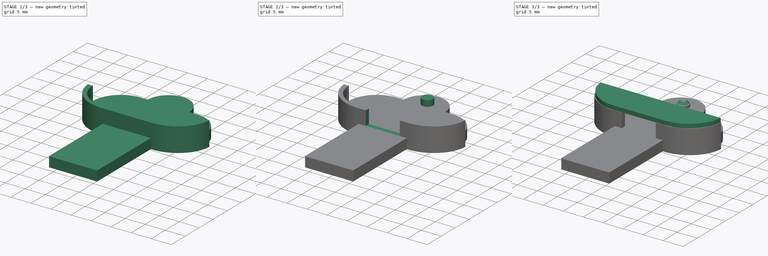
[diagram: build sequence overview — one tinted view per stage of 3, left to right]
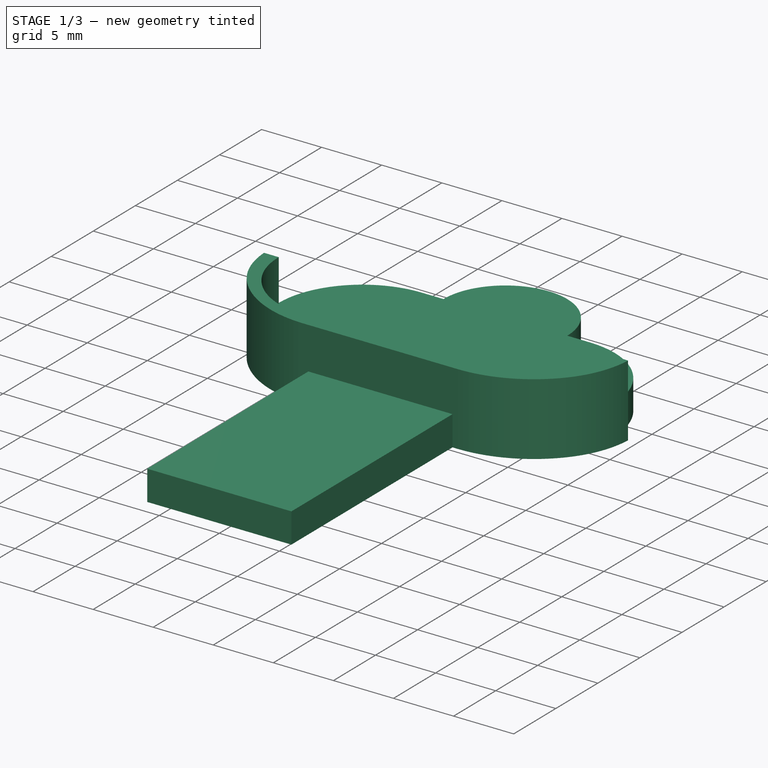
[diagram: stage 1 of 3 — iso view after this stage's code; geometry added in this stage tinted green]
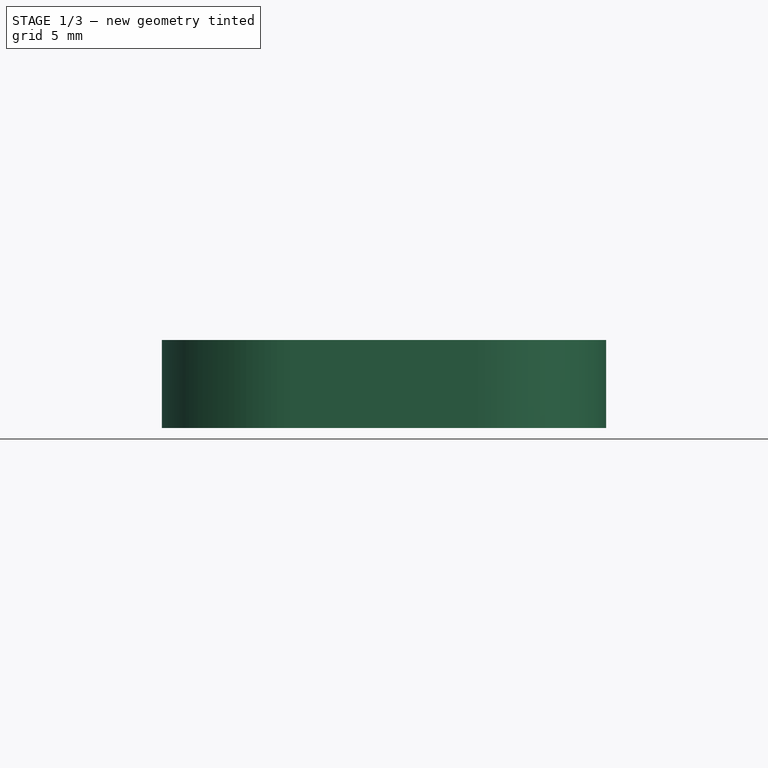
[diagram: stage 1 of 3 — front view after this stage's code; geometry added in this stage tinted green]
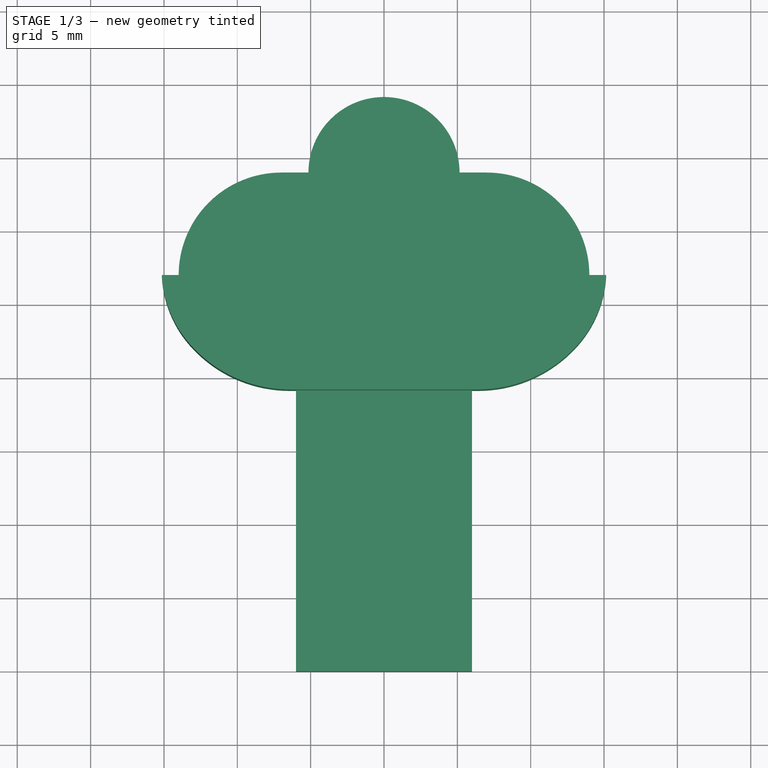
[diagram: stage 1 of 3 — top view after this stage's code; geometry added in this stage tinted green]
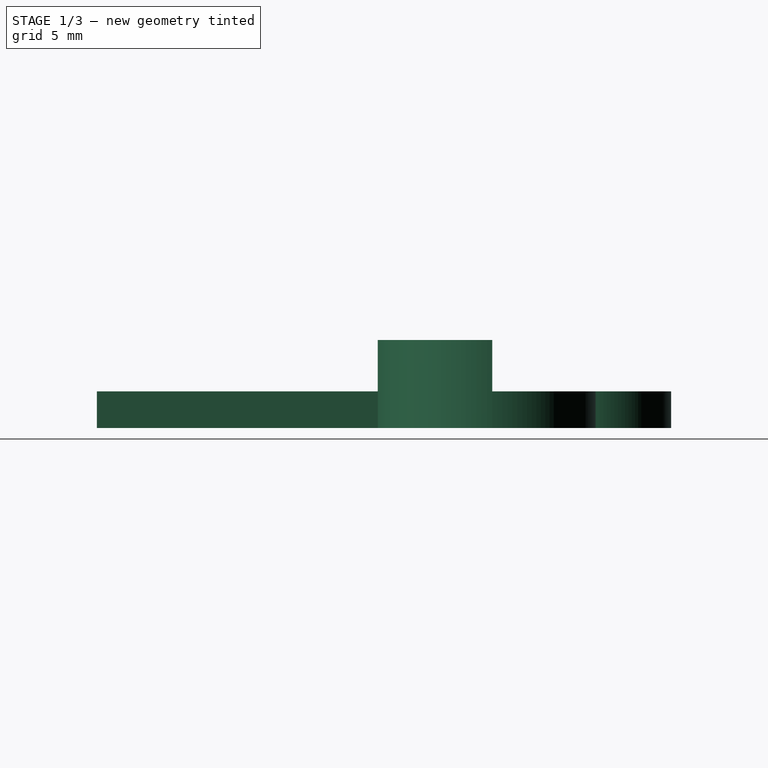
[diagram: stage 1 of 3 — right view after this stage's code; geometry added in this stage tinted green]
FCSTD DOCUMENT  (FreeCAD 0.20R29603 (Git))
Label: New_Key_Holder_ID_Badge
License: All rights reserved
LicenseURL: http://en.wikipedia.org/wiki/All_rights_reserved
objects: Sketcher::SketchObject×5, PartDesign::Pad×4, PartDesign::Body×2, App::Part×2, PartDesign::Pocket×1, PartDesign::Chamfer×1
note: 19 computed .brp shape members not serialized (recipe doc carries the construction recipe); baked Part::Feature solids carry a one-line shape summary decoded from their .brp

FEATURE [Sketcher::SketchObject] Sketch  label="Sketch_Back"
  FullyConstrained = true
  MapMode = 5
  Support = -> [XY_Plane001]
  sketch-geometry (10):
    g0: LineSegment StartX=-6 StartY=0 StartZ=0 EndX=-6 EndY=-20 EndZ=0
    g1: LineSegment StartX=-6 StartY=-20 StartZ=0 EndX=6 EndY=-20 EndZ=0
    g2: LineSegment StartX=6 StartY=-20 StartZ=0 EndX=6 EndY=0 EndZ=0
    g3: LineSegment StartX=6 StartY=0 StartZ=0 EndX=7 EndY=0 EndZ=0
    g4: LineSegment StartX=-6 StartY=0 StartZ=0 EndX=-7 EndY=0 EndZ=0
    g5: LineSegment StartX=-6.99997 StartY=14 StartZ=0 EndX=-5.15 EndY=14 EndZ=0
    g6: LineSegment StartX=7 StartY=14 StartZ=0 EndX=5.15 EndY=14 EndZ=0
    g7: ArcOfCircle CenterX=-7 CenterY=7 CenterZ=0 NormalX=0 NormalY=0 NormalZ=1 AngleXU=0 Radius=7 StartAngle=1.57079 EndAngle=4.71239
    g8: ArcOfCircle CenterX=7 CenterY=7 CenterZ=0 NormalX=0 NormalY=0 NormalZ=1 AngleXU=0 Radius=7 StartAngle=4.71239 EndAngle=7.85398
    g9: ArcOfCircle CenterX=-4e-16 CenterY=14 CenterZ=0 NormalX=0 NormalY=0 NormalZ=1 AngleXU=0 Radius=5.15 StartAngle=4e-16 EndAngle=3.14159
  constraints (28):
    c: PointOnObject(g0,g-1)
    c: Vertical(g0)
    c: Coincident(g0,g1)
    c: Coincident(g1,g2)
    c: Vertical(g2)
    c: Coincident(g2,g3)
    c: PointOnObject(g3,g-1)
    c: Coincident(g0,g4)
    c: PointOnObject(g4,g-1)
    c: Horizontal(g5)
    c: Horizontal(g6)
    c: Tangent(g4,g7) = 1.5708
    c: Coincident(g7,g5)
    c: Tangent(g3,g8) = -1.5708
    c: Coincident(g8,g6)
    c: Perpendicular(g5,g9) = 4.71239
    c: Coincident(g9,g6)
    c: DistanceX(g0,g1) = 12
    c: Horizontal(g1)
    c: Symmetric(g2,g0,g-2)
    c: DistanceX(g5,g6) = 10.3
    c: DistanceY(g2,g2) = 20
    c: DistanceY(g0,g5) = 14
    c: Symmetric(g6,g5,g-2)
    c: Equal(g8,g7)
    c: Equal(g4,g3)
    c: DistanceX(g3,g3) = 1
    c: Radius(g8) = 7
FEATURE [PartDesign::Pad] Pad001  label="Pad_Back"
  Direction = (0,0,1)
  Length = 2.5
  Length2 = 10
  Profile = -> Sketch
  ReferenceAxis = -> Sketch [N_Axis]
  Type = 0
FEATURE [PartDesign::Body] Body001  label="Body_Top"
  Group = -> [Sketch005,Pad002]
  Origin = -> Origin002
  Tip = -> Pad002
FEATURE [App::Part] Part001
  Group = -> [Body001]
  Origin = -> Origin003
FEATURE [Sketcher::SketchObject] Sketch007
  FullyConstrained = true
  MapMode = 5
  Support = -> [XY_Plane001]
  sketch-geometry (18):
    g0: LineSegment StartX=-4.26 StartY=-0.85 StartZ=0 EndX=-6.42 EndY=-0.85 EndZ=0
    g1: ArcOfCircle CenterX=-6.42 CenterY=8.215 CenterZ=0 NormalX=0 NormalY=0 NormalZ=1 AngleXU=0 Radius=9.065 StartAngle=3.85248 EndAngle=4.71239
    g2: ArcOfCircle CenterX=-7.45058 CenterY=7.32759 CenterZ=0 NormalX=0 NormalY=0 NormalZ=1 AngleXU=0 Radius=7.705 StartAngle=3.19062 EndAngle=3.85248
    g3: LineSegment StartX=4.26 StartY=-0.85 StartZ=0 EndX=6.42 EndY=-0.85 EndZ=0
    g4: ArcOfCircle CenterX=6.42 CenterY=8.215 CenterZ=0 NormalX=0 NormalY=0 NormalZ=1 AngleXU=0 Radius=9.065 StartAngle=4.71239 EndAngle=5.57229
    g5: ArcOfCircle CenterX=7.45058 CenterY=7.32759 CenterZ=0 NormalX=0 NormalY=0 NormalZ=1 AngleXU=0 Radius=7.705 StartAngle=5.57229 EndAngle=6.23416
    g6: LineSegment StartX=-15.1463 StartY=6.95 StartZ=0 EndX=-13.9263 EndY=6.95 EndZ=0
    g7: ArcOfCircle CenterX=-7.42 CenterY=6.95 CenterZ=0 NormalX=0 NormalY=0 NormalZ=1 AngleXU=0 Radius=6.50632 StartAngle=3.14159 EndAngle=3.65303
    g8: ArcOfCircle CenterX=-7.22401 CenterY=7.06 CenterZ=0 NormalX=0 NormalY=0 NormalZ=1 AngleXU=0 Radius=6.73107 StartAngle=3.65303 EndAngle=4.25676
    g9: ArcOfCircle CenterX=-6.93 CenterY=7.66 CenterZ=0 NormalX=0 NormalY=0 NormalZ=1 AngleXU=0 Radius=7.39924 StartAngle=4.25676 EndAngle=4.66242
    g10: LineSegment StartX=-7.2996 StartY=0.27 StartZ=0 EndX=-4.325 EndY=0.27 EndZ=0
    g11: LineSegment StartX=15.1463 StartY=6.95 StartZ=0 EndX=13.9263 EndY=6.95 EndZ=0
    g12: ArcOfCircle CenterX=7.42 CenterY=6.95 CenterZ=0 NormalX=0 NormalY=0 NormalZ=1 AngleXU=0 Radius=6.50632 StartAngle=5.77175 EndAngle=6.28319
    g13: ArcOfCircle CenterX=7.22401 CenterY=7.06 CenterZ=0 NormalX=0 NormalY=0 NormalZ=1 AngleXU=0 Radius=6.73107 StartAngle=5.16802 EndAngle=5.77175
    g14: ArcOfCircle CenterX=6.93 CenterY=7.66 CenterZ=0 NormalX=0 NormalY=0 NormalZ=1 AngleXU=0 Radius=7.39924 StartAngle=4.76236 EndAngle=5.16802
    g15: LineSegment StartX=7.2996 StartY=0.27 StartZ=0 EndX=4.325 EndY=0.27 EndZ=0
    g16: LineSegment StartX=-4.325 StartY=0.27 StartZ=0 EndX=4.325 EndY=0.27 EndZ=0
    g17: LineSegment StartX=-4.26 StartY=-0.85 StartZ=0 EndX=4.26 EndY=-0.85 EndZ=0
  constraints (54):
    c: Horizontal(g0)
    c: Tangent(g0,g1) = 1.5708
    c: Tangent(g1,g2) = -1.5708
    c: Horizontal(g3)
    c: Equal(g0,g3)
    c: Horizontal(g0,g3)
    c: Tangent(g3,g4) = -1.5708
    c: Equal(g1,g4)
    c: Horizontal(g1,g4)
    c: DistanceX(g0,g-1) = 4.26
    c: DistanceX(g-1,g3) = 4.26
    c: Diameter(g1) = 18.13
    c: Tangent(g4,g5) = -1.5708
    c: Horizontal(g2,g5)
    c: Equal(g2,g5)
    c: Diameter(g2) = 15.41
    c: Coincident(g2,g6)
    c: Perpendicular(g6,g7) = 4.71239
    c: Tangent(g7,g8) = -1.5708
    c: Tangent(g8,g9) = -1.5708
    c: Coincident(g9,g10)
    c: Horizontal(g10)
    c: Horizontal(g6)
    c: Coincident(g5,g11)
    c: Perpendicular(g11,g12) = 4.71239
    c: Tangent(g12,g13) = -1.5708
    c: Tangent(g13,g14) = -1.5708
    c: Coincident(g14,g15)
    c: Horizontal(g15)
    c: Horizontal(g10,g15)
    c: Coincident(g10,g16)
    c: Coincident(g16,g15)
    c: Coincident(g0,g17)
    c: Coincident(g17,g3)
    c: Equal(g7,g12)
    c: Equal(g8,g13)
    c: Equal(g9,g14)
    c: Equal(g10,g15)
    c: Equal(g6,g11)
    c: DistanceY(g-1,g10) = 0.27
    c: Horizontal(g6,g11)
    c: Horizontal(g7,g12)
    c: Horizontal(g8,g13)
    c: DistanceX(g11,g5) = 1.22
    c: DistanceY(g1,g2) = 4.65
    c: DistanceY(g0,g1) = 3.15
    c: DistanceY(g8,g7) = 2.75
    c: DistanceX(g1,g-1) = 6.42
    c: DistanceY(g3,g15) = 1.12
    c: DistanceX(g9,g-1) = 6.93
    c: DistanceY(g-1,g13) = 7.06
    c: DistanceY(g-1,g14) = 7.66
    c: DistanceX(g7,g12) = 14.84
    c: DistanceX(g10,g15) = 8.65
FEATURE [PartDesign::Pad] Pad
  BaseFeature = -> Pad001
  Direction = (0,0,1)
  Length = 6
  Length2 = 10
  Profile = -> Sketch007
  ReferenceAxis = -> Sketch007 [N_Axis]
  Type = 0
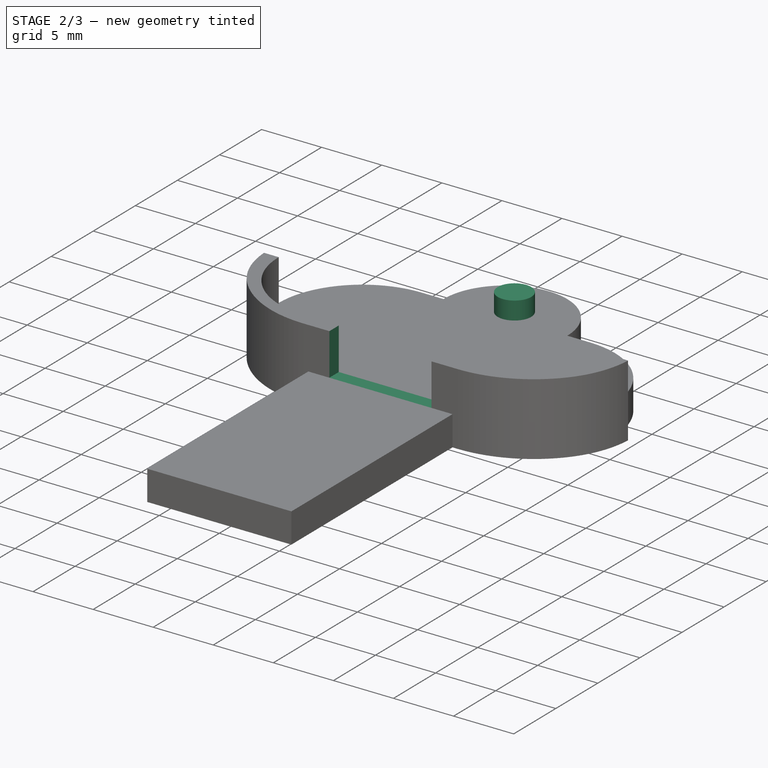
[diagram: stage 2 of 3 — iso view after this stage's code; geometry added in this stage tinted green]
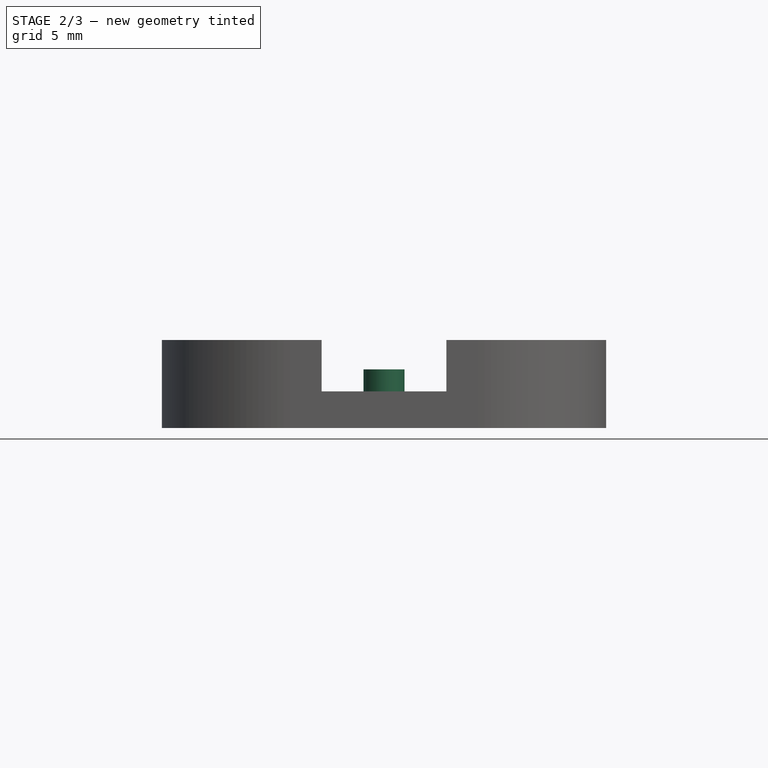
[diagram: stage 2 of 3 — front view after this stage's code; geometry added in this stage tinted green]
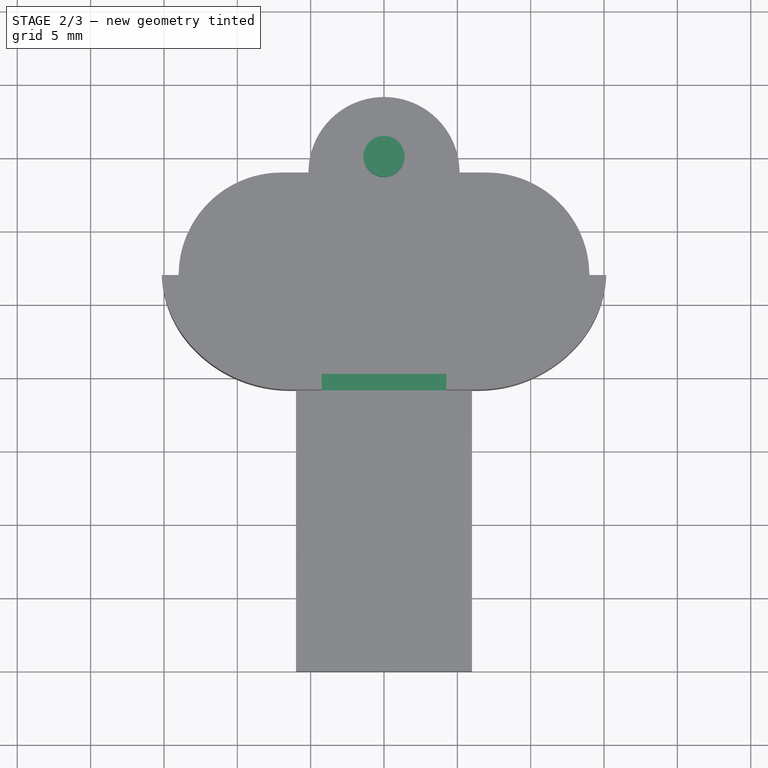
[diagram: stage 2 of 3 — top view after this stage's code; geometry added in this stage tinted green]
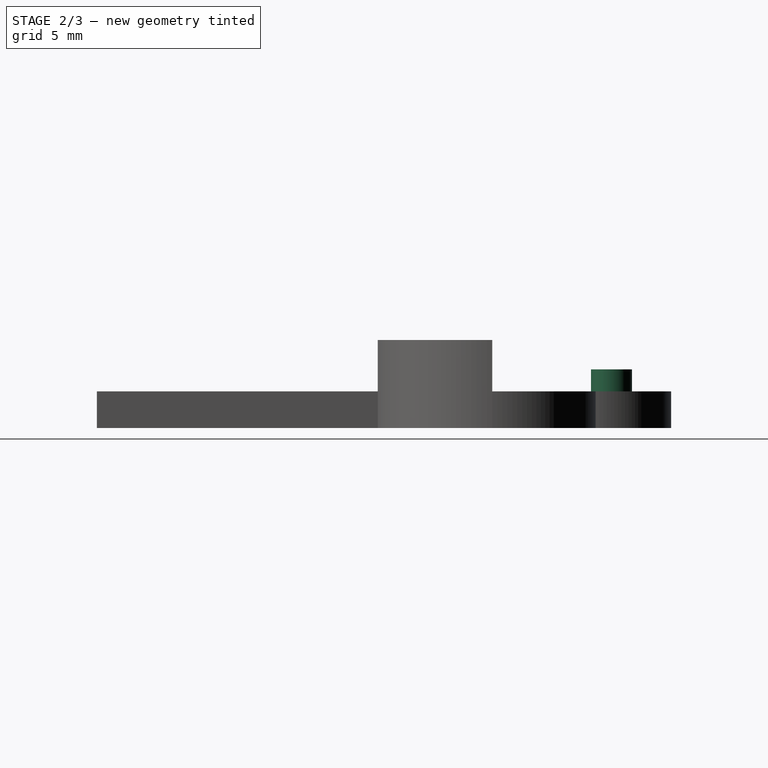
[diagram: stage 2 of 3 — right view after this stage's code; geometry added in this stage tinted green]
FEATURE [Sketcher::SketchObject] Sketch008
  AttachmentOffset = pos=(0,0,-1.75) rot=(0,0,1;0rad)
  FullyConstrained = true
  MapMode = 5
  Placement = pos=(4.25,0,0) rot=(0.57735,0.57735,0.57735;2.0944rad)
  Support = -> [Pad]
  sketch-geometry (4):
    g0: LineSegment StartX=-6.01 StartY=2.5 StartZ=0 EndX=6.01 EndY=2.5 EndZ=0
    g1: LineSegment StartX=6.01 StartY=2.5 StartZ=0 EndX=6.01 EndY=6 EndZ=0
    g2: LineSegment StartX=6.01 StartY=6 StartZ=0 EndX=-6.01 EndY=6 EndZ=0
    g3: LineSegment StartX=-6.01 StartY=6 StartZ=0 EndX=-6.01 EndY=2.5 EndZ=0
  constraints (12):
    c: Coincident(g0,g1)
    c: Coincident(g1,g2)
    c: Coincident(g2,g3)
    c: Coincident(g3,g0)
    c: Horizontal(g0)
    c: Horizontal(g2)
    c: Vertical(g1)
    c: Vertical(g3)
    c: DistanceY(g0,g2) = 3.5
    c: DistanceX(g2,g1) = 12.02
    c: DistanceY(g-1,g2) = 6
    c: DistanceX(g0,g-1) = 6.01
FEATURE [PartDesign::Pocket] Pocket001
  BaseFeature = -> Pad
  Direction = (-1,0,0)
  Length = 8.5
  Length2 = 5
  Profile = -> Sketch008
  ReferenceAxis = -> Sketch008 [N_Axis]
  Type = 0
FEATURE [Sketcher::SketchObject] Sketch009
  FullyConstrained = false
  MapMode = 5
  Placement = pos=(0,0,2.5) rot=(0,0,1;0rad)
  Support = -> [Pocket001]
  sketch-geometry (1):
    g0: Circle CenterX=0 CenterY=15.0818 CenterZ=0 NormalX=0 NormalY=0 NormalZ=1 AngleXU=0 Radius=1.39558
  constraints (1):
    c: PointOnObject(g0,g-2)
FEATURE [PartDesign::Pad] Pad003
  BaseFeature = -> Pocket001
  Direction = (0,0,1)
  Length = 1.5
  Length2 = 10
  Profile = -> Sketch009
  ReferenceAxis = -> Sketch009 [N_Axis]
  Type = 0
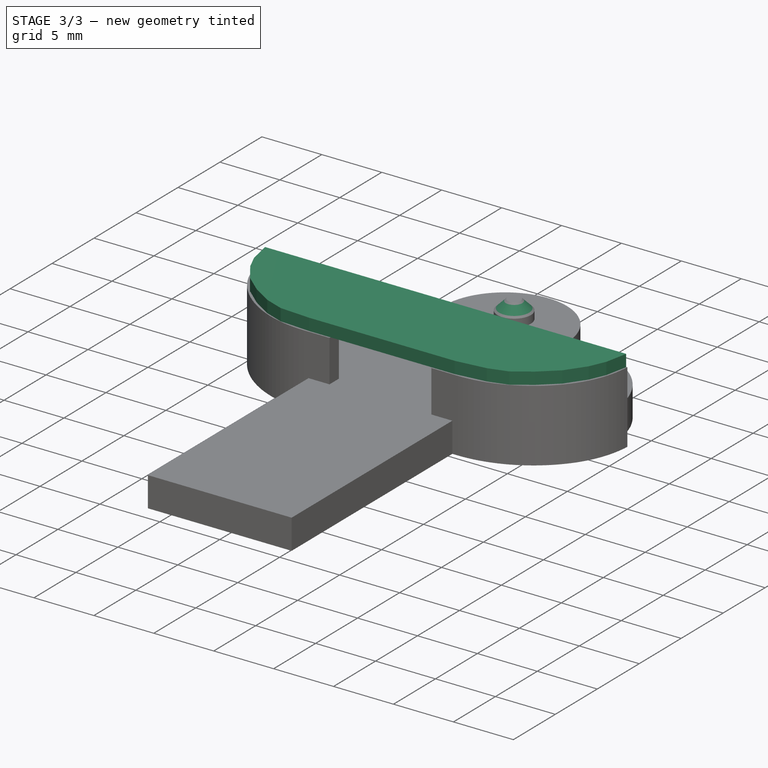
[diagram: stage 3 of 3 — iso view after this stage's code; geometry added in this stage tinted green]
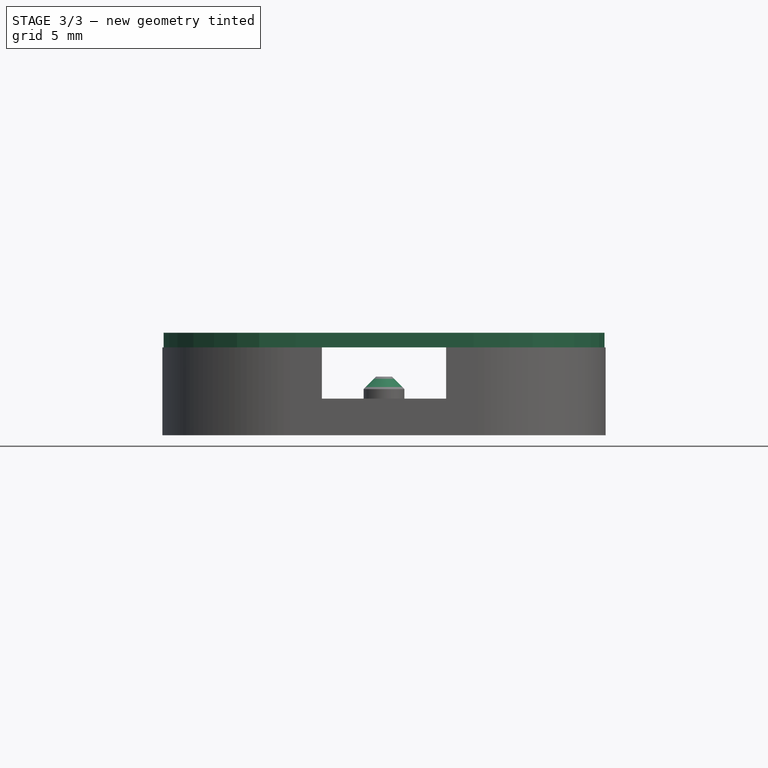
[diagram: stage 3 of 3 — front view after this stage's code; geometry added in this stage tinted green]
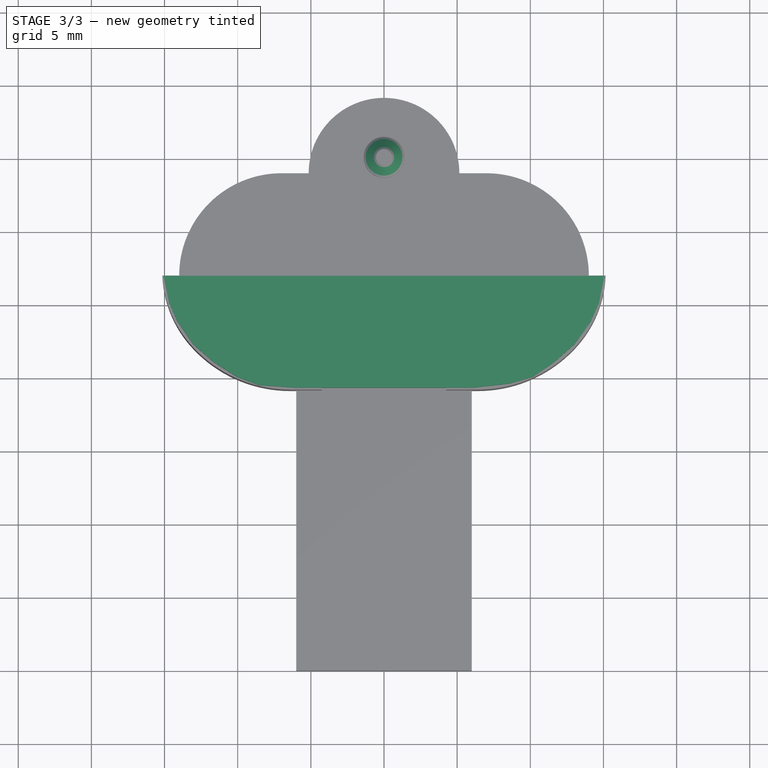
[diagram: stage 3 of 3 — top view after this stage's code; geometry added in this stage tinted green]
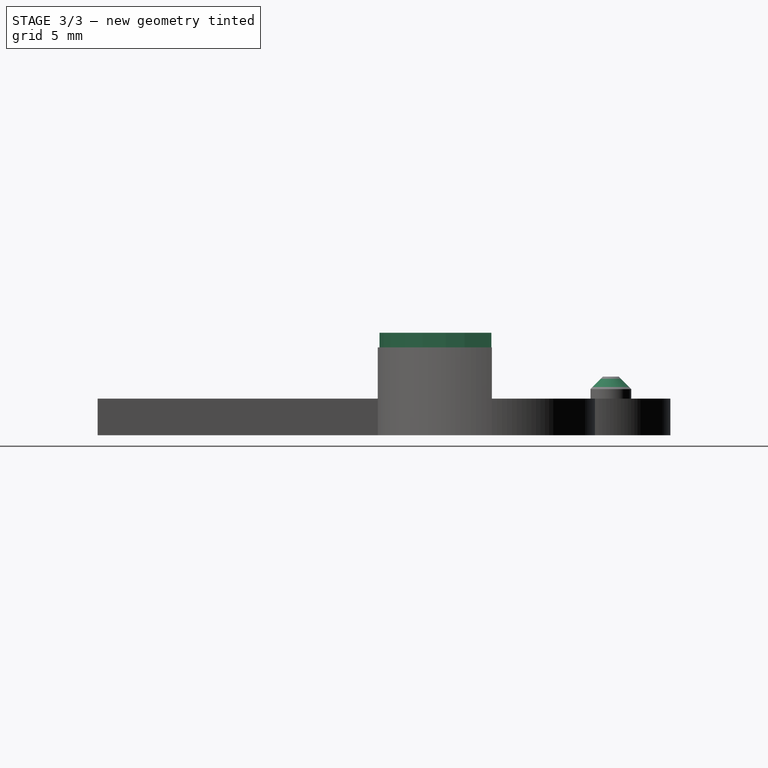
[diagram: stage 3 of 3 — right view after this stage's code; geometry added in this stage tinted green]
FEATURE [Sketcher::SketchObject] Sketch005  label="Sketch_Top"
  AttachmentOffset = pos=(0,0,6) rot=(0,0,1;0rad)
  FullyConstrained = true
  MapMode = 5
  Placement = pos=(0,0,6) rot=(0,0,1;0rad)
  Support = -> [XY_Plane002]
  sketch-geometry (16):
    g0: LineSegment StartX=-15.0618 StartY=6.91145 StartZ=0 EndX=-14.6868 EndY=5.08145 EndZ=0
    g1: LineSegment StartX=-14.6868 StartY=5.08145 StartZ=0 EndX=-14.1218 EndY=3.80145 EndZ=0
    g2: LineSegment StartX=-14.1218 StartY=3.80145 StartZ=0 EndX=-13.03 EndY=2.22 EndZ=0
    g3: LineSegment StartX=-13.03 StartY=2.22 StartZ=0 EndX=-11.62 EndY=0.998293 EndZ=0
    g4: LineSegment StartX=-11.62 StartY=0.998293 StartZ=0 EndX=-10.0439 EndY=-1e-16 EndZ=0
    g5: LineSegment StartX=-10.0439 StartY=-1e-16 StartZ=0 EndX=-8.53 EndY=-0.558553 EndZ=0
    g6: LineSegment StartX=-8.53 StartY=-0.558553 StartZ=0 EndX=-6.04 EndY=-0.73 EndZ=0
    g7: LineSegment StartX=-6.04 StartY=-0.73 StartZ=0 EndX=6.12 EndY=-0.73 EndZ=0
    g8: LineSegment StartX=6.12 StartY=-0.73 StartZ=0 EndX=8.6 EndY=-0.448764 EndZ=0
    g9: LineSegment StartX=8.6 StartY=-0.448764 StartZ=0 EndX=10.15 EndY=-1e-16 EndZ=0
    g10: LineSegment StartX=10.15 StartY=-1e-16 StartZ=0 EndX=11.62 EndY=0.998293 EndZ=0
    g11: LineSegment StartX=11.62 StartY=0.998293 StartZ=0 EndX=13.02 EndY=2.23145 EndZ=0
    g12: LineSegment StartX=13.02 StartY=2.23145 StartZ=0 EndX=14.1282 EndY=3.80145 EndZ=0
    g13: LineSegment StartX=14.1282 StartY=3.80145 StartZ=0 EndX=14.6932 EndY=5.08145 EndZ=0
    g14: LineSegment StartX=14.6932 StartY=5.08145 StartZ=0 EndX=15.0682 EndY=6.91145 EndZ=0
    g15: LineSegment StartX=-15.0618 StartY=6.91145 StartZ=0 EndX=15.0682 EndY=6.91145 EndZ=0
  constraints (48):
    c: Coincident(g0,g1)
    c: Coincident(g1,g2)
    c: Coincident(g2,g3)
    c: Coincident(g3,g4)
    c: PointOnObject(g4,g-1)
    c: Coincident(g4,g5)
    c: Coincident(g5,g6)
    c: Coincident(g6,g7)
    c: Horizontal(g7)
    c: Coincident(g8,g9)
    c: PointOnObject(g9,g-1)
    c: Coincident(g9,g10)
    c: Coincident(g10,g11)
    c: Coincident(g11,g12)
    c: Coincident(g12,g13)
    c: Coincident(g13,g14)
    c: Coincident(g0,g15)
    c: Coincident(g15,g14)
    c: Horizontal(g15)
    c: Equal(g0,g14)
    c: Equal(g1,g13)
    c: Equal(g2,g12)
    c: Equal(g3,g11)
    c: Horizontal(g0,g13)
    c: DistanceX(g0,g13) = 29.38
    c: DistanceX(g1,g12) = 28.25
    c: Equal(g11,g4)
    c: Horizontal(g3,g10)
    c: DistanceY(g8,g-1) = 0.73
    c: Coincident(g8,g7)
    c: Equal(g8,g6)
    c: Equal(g9,g5)
    c: DistanceX(g6,g-1) = 6.04
    c: DistanceX(g7,g8) = 2.48
    c: DistanceX(g8,g9) = 1.55
    c: DistanceX(g9,g10) = 1.47
    c: DistanceX(g10,g11) = 1.4
    c: DistanceY(g11,g12) = 1.57
    c: DistanceY(g12,g13) = 1.28
    c: DistanceY(g13,g14) = 1.83
    c: DistanceX(g15,g15) = 30.13
    c: DistanceX(g2,g11) = 26.05
    c: DistanceX(g3,g10) = 23.24
    c: Horizontal(g1,g12)
    c: DistanceX(g5,g-1) = 8.53
    c: DistanceX(g3,g-1) = 11.62
    c: DistanceY(g-1,g2) = 2.22
    c: DistanceY(g5,g0) = 5.64
FEATURE [PartDesign::Pad] Pad002
  Direction = (0,0,1)
  Length = 1
  Length2 = 10
  Profile = -> Sketch005
  ReferenceAxis = -> Sketch005 [N_Axis]
  Type = 0
FEATURE [PartDesign::Chamfer] Chamfer
  Angle = 45
  Base = -> Pad003 [Edge92]
  BaseFeature = -> Pad003
  ChamferType = 0
  FlipDirection = false
  Size = 0.85
  Size2 = 1
  SupportTransform = false
  UseAllEdges = false
FEATURE [PartDesign::Body] Body  label="Body_Key_Holder_ID_Badge"
  Group = -> [Sketch,Pad001,Sketch007,Pad,Sketch008,Pocket001,Sketch009,Pad003,Chamfer]
  Origin = -> Origin001
  Tip = -> Chamfer
FEATURE [App::Part] Part  label="Part_Key_Holder_ID_Badge"
  Group = -> [Body]
  Origin = -> Origin
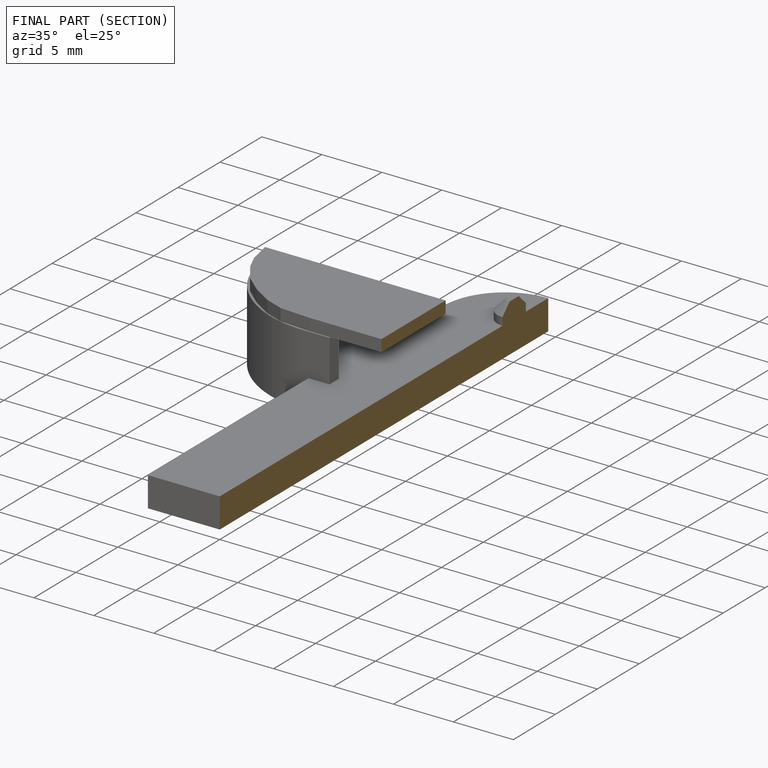
[diagram: finished part — half-section view (interior)]
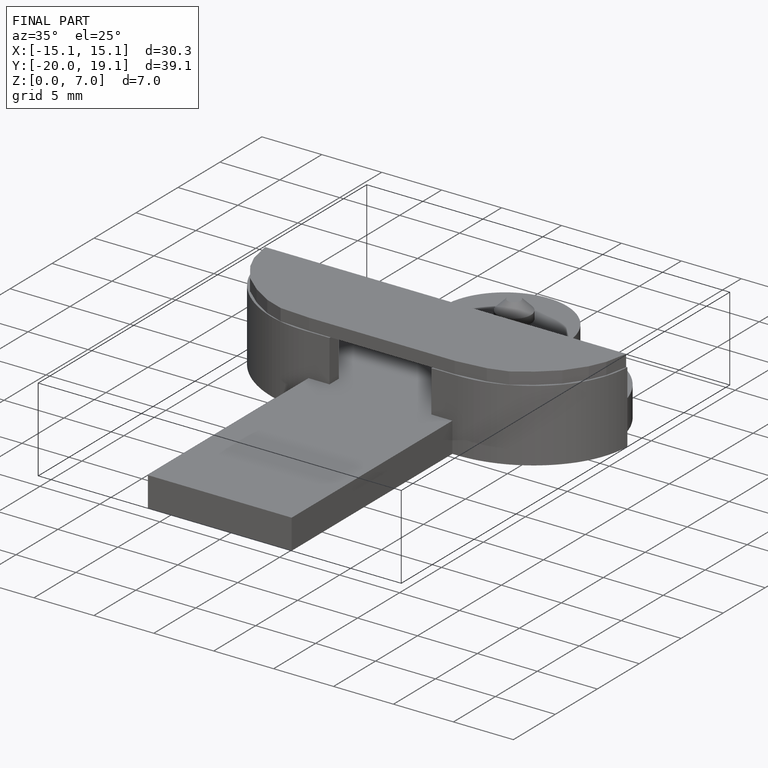
[diagram: finished part — iso view with bounding-box wireframe]
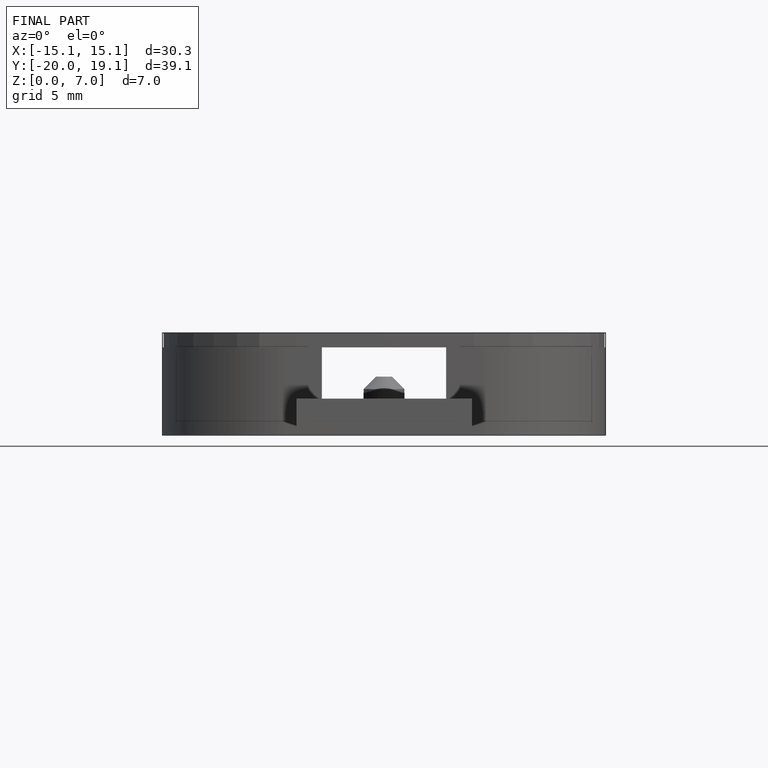
[diagram: finished part — front view with bounding-box wireframe]
